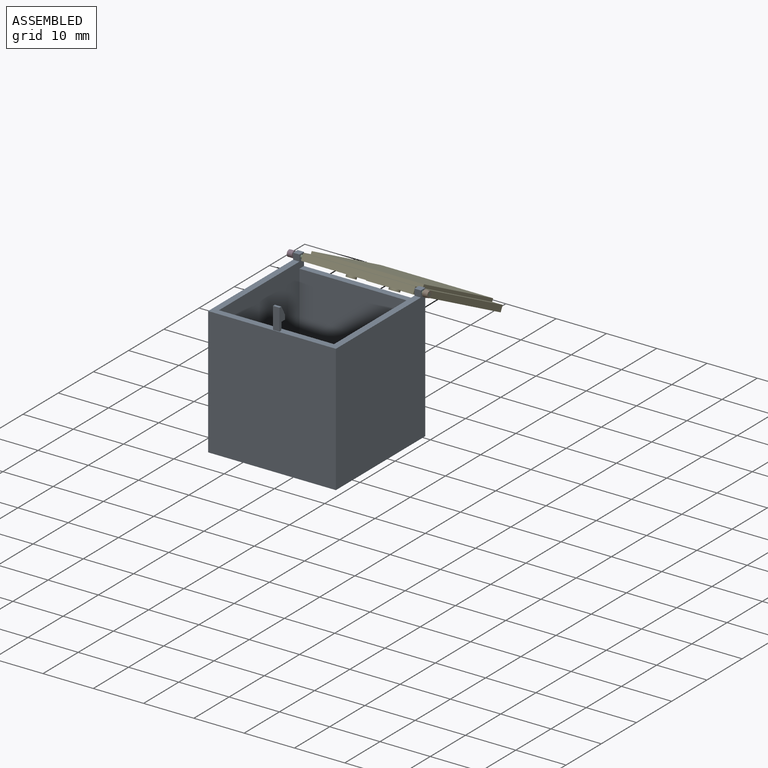
[diagram: assembled view]
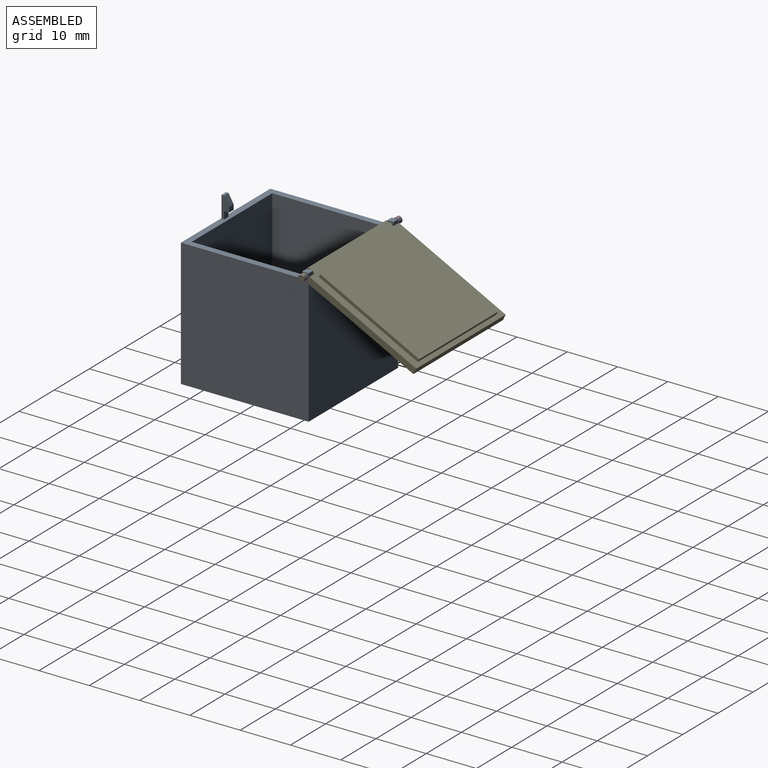
[diagram: assembled view, second angle]
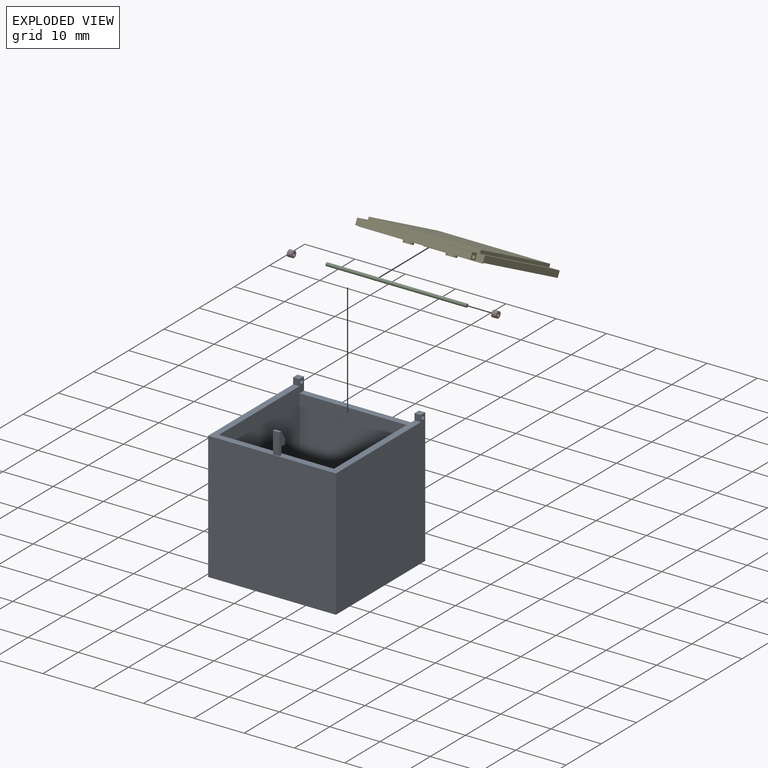
[diagram: exploded view]
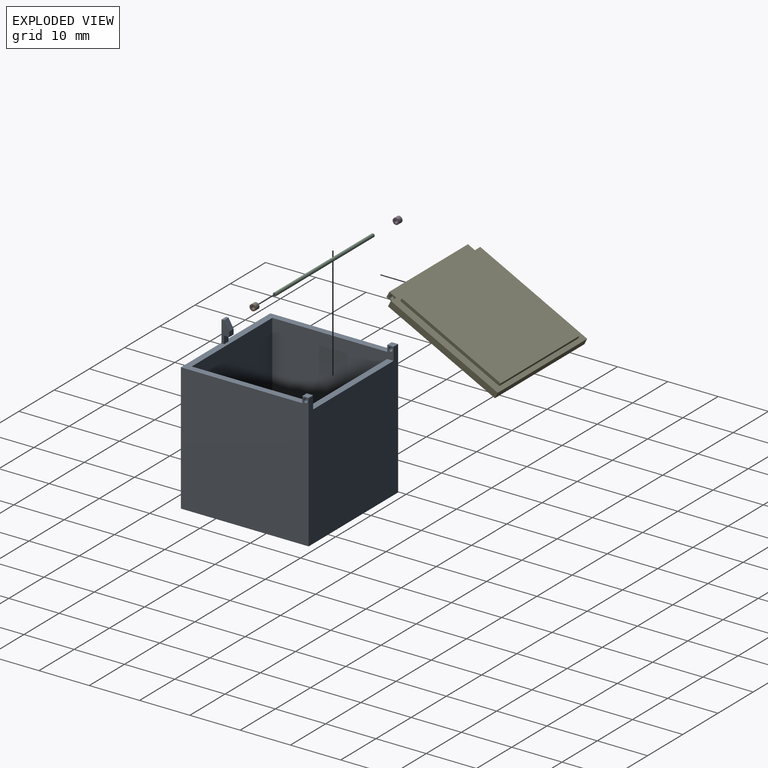
[diagram: exploded view, second angle]
ASSEMBLY  parts=5 mates=3
PART A: 26 faces, bbox 25.4x25.4x29.7 mm
  f0: plane 25.4x24.13mm, normal (0,0,1), area 89.7mm2, adj f2,f4,f5,f6,f7,f8,f11,f13
  f1: plane 22.86x21.59mm, normal (0,-1,0), area 493.5mm2, adj f5,f7,f10,f17
  f2: plane 26.67x25.4mm, normal (1,0,0), area 646.2mm2, adj f0,f3,f8,f9,f13,f14,f15
  f3: plane 26.67x25.4mm, normal (0,1,0), area 619.4mm2, adj f2,f4,f5,f7,f9,f12,f14,f17
  f4: plane 26.67x25.4mm, normal (-1,0,0), area 646.2mm2, adj f0,f3,f8,f9,f11,f12,f16
  f5: plane 24.13x24.13mm, normal (-1,0,0), area 525.3mm2, adj f0,f1,f3,f6,f10,f13,f14,f15
  f6: plane 22.86x22.86mm, normal (0,1,0), area 522.6mm2, adj f0,f5,f7,f10
  f7: plane 24.13x24.13mm, normal (1,0,0), area 525.3mm2, adj f0,f1,f3,f6,f10,f11,f12,f16
  f8: plane 25.4x25.4mm, normal (0,-1,0), area 645.2mm2, adj f0,f2,f4,f9
  f9: plane 25.4x25.4mm, normal (0,0,-1), area 645.2mm2, adj f2,f3,f4,f8
  f10: plane 22.86x22.86mm, normal (0,0,1), area 522.6mm2, adj f1,f5,f6,f7
  f11: plane 1.27x1.27mm, normal (0,-1,0), area 1.6mm2, adj f0,f4,f7,f12
  f12: plane 1.27x1.27mm, normal (0,0,1), area 1.6mm2, adj f3,f4,f7,f11
  f13: plane 1.27x1.27mm, normal (0,-1,0), area 1.6mm2, adj f0,f2,f5,f14
  f14: plane 1.27x1.27mm, normal (0,0,1), area 1.6mm2, adj f2,f3,f5,f13
  f15: cylinder r=0.42mm len=1.27mm, axis (-1,0,0), area 3.3mm2, adj f2,f5
  f16: cylinder r=0.42mm len=1.27mm, axis (-1,0,0), area 3.3mm2, adj f4,f7
  f17: plane 22.86x1.27mm, normal (0,0,1), area 29mm2, adj f1,f3,f5,f7
  f18: plane 4.3x1.52mm, normal (1,0,0), area 4.1mm2, adj f0,f19,f21,f22,f23,f24,f25
  f19: plane 1.52x1.27mm, normal (0,1,0), area 1.9mm2, adj f0,f18,f20,f22
  f20: plane 4.3x1.52mm, normal (-1,0,0), area 4.1mm2, adj f0,f19,f21,f22,f23,f24,f25
  f21: plane 4.3x1.27mm, normal (0,-1,0), area 5.5mm2, adj f0,f18,f20,f24
  f22: plane 1.27x1.02mm, normal (0,0,-1), area 1.3mm2, adj f18,f19,f20,f23
  f23: plane 1.27x1.02mm, normal (0,1,0), area 1.3mm2, adj f18,f20,f22,f25
  f24: plane 1.27x0.51mm, normal (0,0,1), area 0.6mm2, adj f18,f20,f21,f25
  f25: plane 1.76x1.27mm, normal (0,0.87,0.5), area 2.6mm2, adj f18,f20,f23,f24
PART B: 4 faces, bbox 1x1.3x1.3 mm
  f0: cylinder r=0.33mm len=1.02mm, axis (1,0,0), area 2.1mm2, adj f2,f3
  f1: cylinder r=0.63mm len=1.27mm, axis (1,0,0), area 4mm2, adj f2,f3
  f2: plane 1.27x1.27mm, normal (-1,0,0), area 0.9mm2, adj f0,f1
  f3: plane 1.27x1.27mm, normal (1,0,0), area 0.9mm2, adj f0,f1
PART C: 3 faces, bbox 27.9x0.7x0.7 mm
  f0: cylinder r=0.34mm len=27.94mm, axis (1,0,0), area 59mm2, adj f1,f2
  f1: plane 0.67x0.67mm, normal (-1,0,0), area 0.4mm2, adj f0
  f2: plane 0.67x0.67mm, normal (1,0,0), area 0.4mm2, adj f0
PART D: 4 faces, bbox 1x1.3x1.3 mm
  f0: cylinder r=0.33mm len=1.02mm, axis (1,0,0), area 2.1mm2, adj f2,f3
  f1: cylinder r=0.63mm len=1.27mm, axis (1,0,0), area 4mm2, adj f2,f3
  f2: plane 1.27x1.27mm, normal (-1,0,0), area 0.9mm2, adj f0,f1
  f3: plane 1.27x1.27mm, normal (1,0,0), area 0.9mm2, adj f0,f1
PART E: 23 faces, bbox 25.4x25.4x2.7 mm
  f0: plane 25.4x25.4mm, normal (0,0,1), area 601.6mm2, adj f1,f2,f3,f5,f6,f7,f8,f9
  f1: plane 23.85x1.27mm, normal (1,0,0), area 30.3mm2, adj f0,f4,f5,f9
  f2: plane 22.32x1.27mm, normal (0,1,0), area 28.3mm2, adj f0,f4,f6,f8
  f3: plane 23.85x1.27mm, normal (-1,0,0), area 30.3mm2, adj f0,f4,f5,f7
  f4: plane 25.4x25.4mm, normal (0,0,-1), area 147.6mm2, adj f1,f2,f3,f5,f6,f7,f8,f9
  f5: plane 25.4x1.27mm, normal (0,-1,0), area 32.3mm2, adj f0,f1,f3,f4
  f6: plane 1.55x1.27mm, normal (-1,0,0), area 1.4mm2, adj f0,f2,f4,f7,f10
  f7: plane 1.54x1.27mm, normal (0,1,0), area 2mm2, adj f0,f3,f4,f6
  f8: plane 1.55x1.27mm, normal (1,0,0), area 1.4mm2, adj f0,f2,f4,f9,f10
  f9: plane 1.54x1.27mm, normal (0,1,0), area 2mm2, adj f0,f1,f4,f8
  f10: cylinder r=0.43mm len=22.32mm, axis (1,0,0), area 60mm2, adj f6,f8
  f11: plane 22.31x0.64mm, normal (0,-1,0), area 14.2mm2, adj f4,f12,f14,f15
  f12: plane 22.08x0.64mm, normal (-1,0,0), area 14mm2, adj f4,f11,f13,f15
  f13: plane 22.31x0.64mm, normal (0,1,0), area 14.2mm2, adj f4,f12,f14,f15
  f14: plane 22.08x0.64mm, normal (1,0,0), area 14mm2, adj f4,f11,f13,f15
  f15: plane 22.31x22.08mm, normal (0,0,-1), area 492.8mm2, adj f11,f12,f13,f14
  f16: cylinder r=0.93mm len=1.87mm, axis (0,0,-1), area 4.5mm2, adj f0,f17
  f17: plane 1.87x1.87mm, normal (0,0,1), area 2.7mm2, adj f16
  f18: cylinder r=0.99mm len=1.98mm, axis (0,0,-1), area 4.7mm2, adj f0,f19
  f19: plane 1.98x1.98mm, normal (0,0,1), area 3.1mm2, adj f18
  f20: plane 11.65x0.76mm, normal (0.04,1,0), area 8.9mm2, adj f0,f21,f22
  f21: cylinder r=6.3mm len=11.65mm, axis (0,0,-1), area 11.3mm2, adj f0,f20,f22
  f22: plane 11.65x4.13mm, normal (0,0,1), area 33mm2, adj f20,f21
PLACE A t=(-15.47,-33.02,-11.87)mm fixed
PLACE B t=(-17.12,-33.06,-11.78)mm
PLACE C t=(-15.47,-33.02,-11.87)mm
PLACE D t=(-13.66,-33.06,-11.78)mm
PLACE E rot(axis=(1,0,0),153deg) t=(-44.97,18.1,24.91)mm
MATE revolute E.f10 <-> A.f15  axis (1,0,0) through (-4.04,-20.96,14.17)mm
MATE fastened B.f0 <-> C.f0  axis (1,0,0) through (-1.5,-20.96,14.17)mm
MATE fastened D.f0 <-> C.f0  axis (1,0,0) through (-29.44,-20.96,14.17)mm
